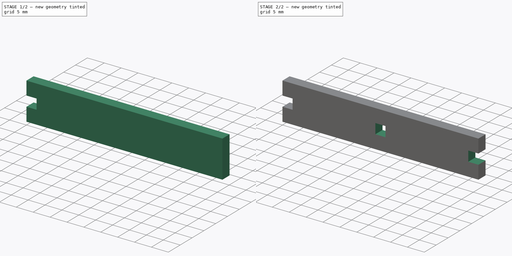
[diagram: build sequence overview — one tinted view per stage of 2, left to right]
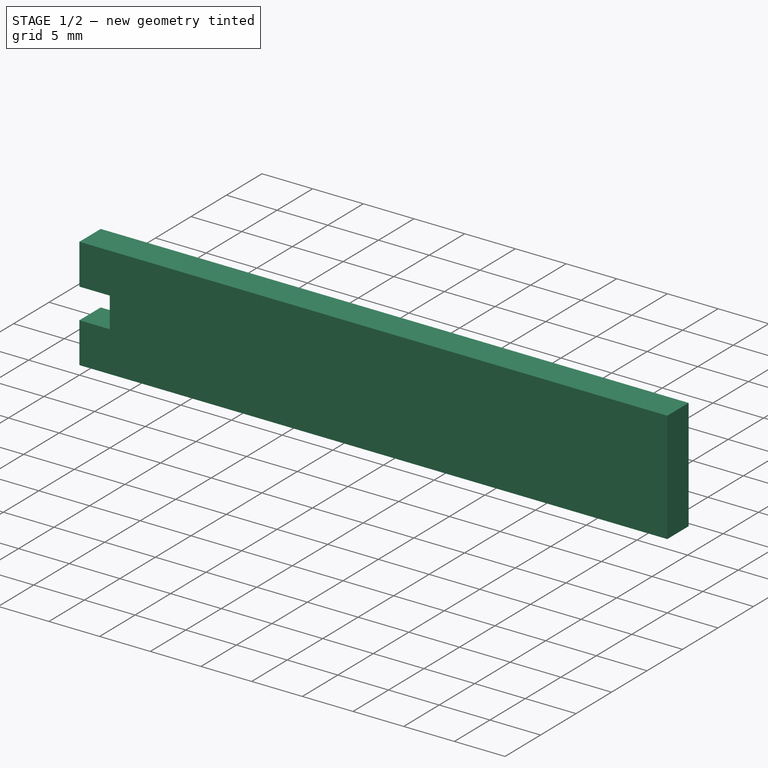
[diagram: stage 1 of 2 — iso view after this stage's code; geometry added in this stage tinted green]
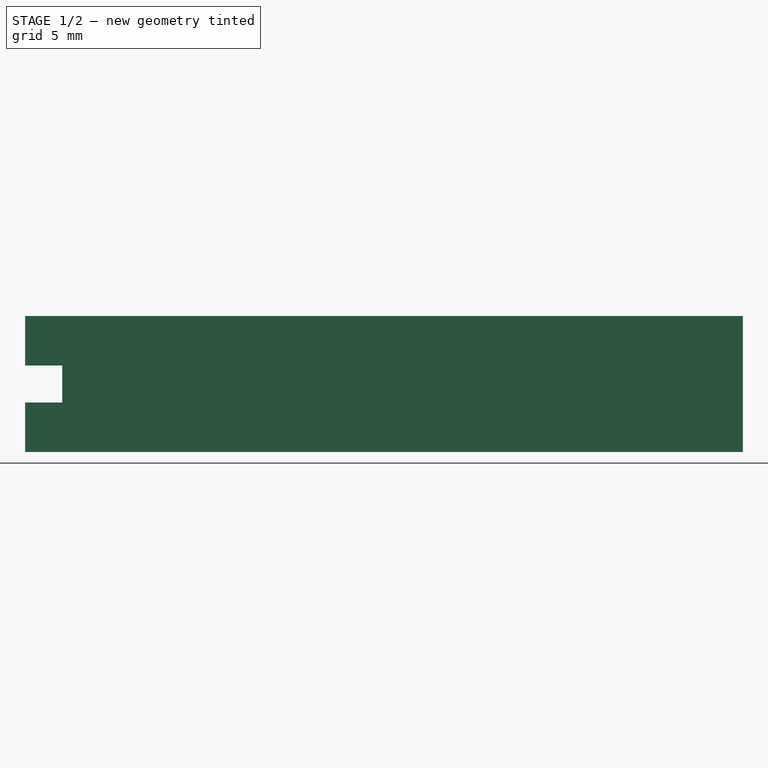
[diagram: stage 1 of 2 — front view after this stage's code; geometry added in this stage tinted green]
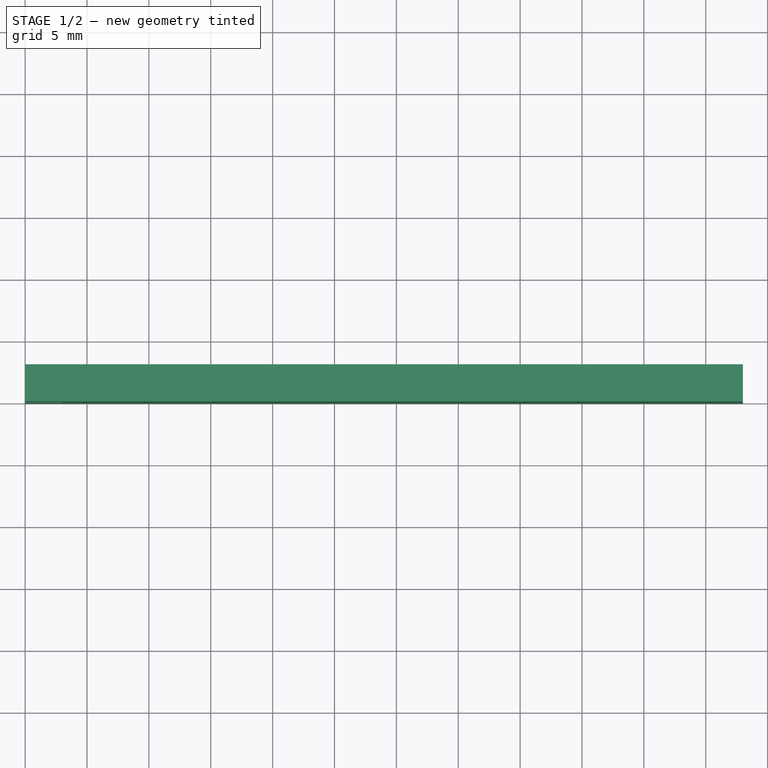
[diagram: stage 1 of 2 — top view after this stage's code; geometry added in this stage tinted green]
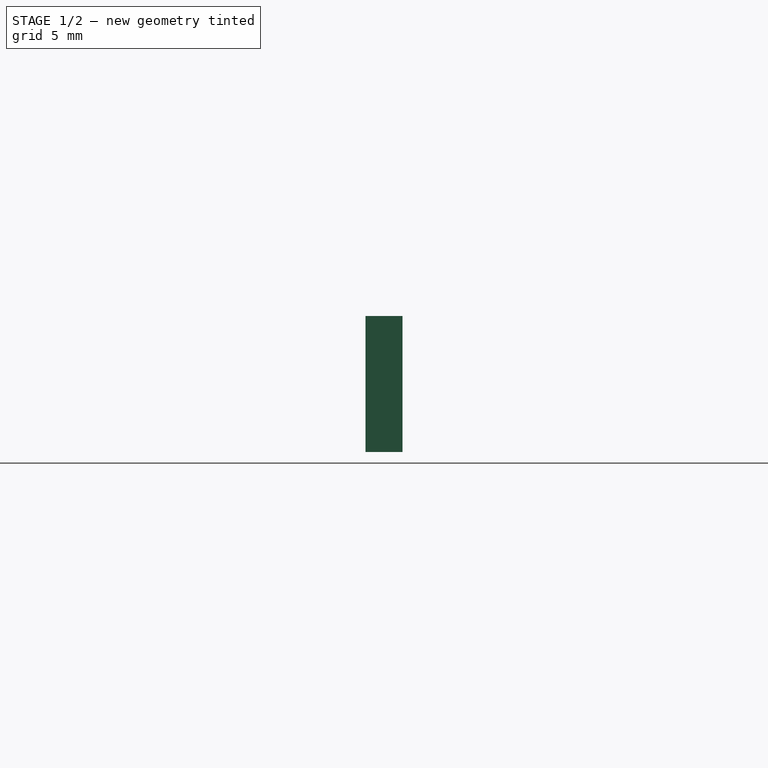
[diagram: stage 1 of 2 — right view after this stage's code; geometry added in this stage tinted green]
FCSTD DOCUMENT  (FreeCAD 0.21R33694 (Git))
Label: kumiko_strip_short_holes
License: All rights reserved
LicenseURL: http://en.wikipedia.org/wiki/All_rights_reserved
objects: Sketcher::SketchObject×2, PartDesign::Pad×1, PartDesign::Pocket×1, App::Link×1, PartDesign::LinearPattern×1, PartDesign::Body×1
note: 8 computed .brp shape members not serialized (recipe doc carries the construction recipe); baked Part::Feature solids carry a one-line shape summary decoded from their .brp
EXTERNAL_REF file=../../master_kumiko_box.FCStd obj=Spreadsheet

FEATURE [Sketcher::SketchObject] Sketch079  label="short_strip_profile"
  FullyConstrained = true
  MapMode = 5
  Placement = pos=(0,0,0) rot=(0.57735,0.57735,0.57735;2.0944rad)
  Support = -> [YZ_Plane070]
  expr: Constraints[10] = 0
  expr: Constraints[8] = <<SpreadSheet>>.kumiko_thickness
  expr: Constraints[9] = <<SpreadSheet>>.kumiko_hight
  sketch-geometry (4):
    g0: LineSegment StartX=0 StartY=11 StartZ=0 EndX=3 EndY=11 EndZ=0
    g1: LineSegment StartX=3 StartY=11 StartZ=0 EndX=3 EndY=0 EndZ=0
    g2: LineSegment StartX=3 StartY=0 StartZ=0 EndX=0 EndY=0 EndZ=0
    g3: LineSegment StartX=0 StartY=0 StartZ=0 EndX=0 EndY=11 EndZ=0
  constraints (12):
    c: Coincident(g0,g1)
    c: Coincident(g1,g2)
    c: Coincident(g2,g3)
    c: Coincident(g3,g0)
    c: Horizontal(g0)
    c: Horizontal(g2)
    c: Vertical(g1)
    c: Vertical(g3)
    c: DistanceX(g0,g0) = 3
    c: DistanceY(g3,g3) = 11
    c: DistanceX(g0,g-1) = 0
    c: DistanceY(g-1,g2) = 0
FEATURE [PartDesign::Pad] Pad037  label="short_strip_extrusion"
  Direction = (1,-2e-16,3e-16)
  Length = 58
  Length2 = 10
  Placement = pos=(0,0,0) rot=(0.57735,0.57735,0.57735;2.0944rad)
  Profile = -> Sketch079
  ReferenceAxis = -> Sketch079 [N_Axis]
  Type = 0
  expr: Length = <<SpreadSheet>>.box_width - 2 * <<SpreadSheet>>.lid_frame_width
FEATURE [Sketcher::SketchObject] Sketch080  label="half_lap_drawing"
  FullyConstrained = true
  MapMode = 5
  Placement = pos=(0,0,0) rot=(-0.57735,-0.57735,0.57735;4.18879rad)
  Support = -> [Pad037]
  expr: Constraints[10] = 0
  expr: Constraints[11] = (<<SpreadSheet>>.kumiko_hight - <<SpreadSheet>>.kumiko_thickness) / 2
  expr: Constraints[8] = <<SpreadSheet>>.kumiko_thickness
  expr: Constraints[9] = <<SpreadSheet>>.kumiko_thickness
  sketch-geometry (4):
    g0: LineSegment StartX=-7 StartY=0 StartZ=0 EndX=-4 EndY=0 EndZ=0
    g1: LineSegment StartX=-4 StartY=0 StartZ=0 EndX=-4 EndY=3 EndZ=0
    g2: LineSegment StartX=-4 StartY=3 StartZ=0 EndX=-7 EndY=3 EndZ=0
    g3: LineSegment StartX=-7 StartY=3 StartZ=0 EndX=-7 EndY=0 EndZ=0
  constraints (12):
    c: Coincident(g0,g1)
    c: Coincident(g1,g2)
    c: Coincident(g2,g3)
    c: Coincident(g3,g0)
    c: Horizontal(g0)
    c: Horizontal(g2)
    c: Vertical(g1)
    c: Vertical(g3)
    c: DistanceY(g1,g1) = 3
    c: DistanceX(g0,g0) = 3
    c: DistanceY(g-1,g0) = 0
    c: DistanceX(g0,g-1) = 4
FEATURE [PartDesign::Pocket] Pocket019  label="half_lap_joint"
  BaseFeature = -> Pad037
  Direction = (4e-16,1,-2e-16)
  Length = 3
  Length2 = 5
  Placement = pos=(0,0,0) rot=(0.57735,0.57735,0.57735;2.0944rad)
  Profile = -> Sketch080
  ReferenceAxis = -> Sketch080 [N_Axis]
  Type = 0
  expr: Length = <<SpreadSheet>>.kumiko_thickness
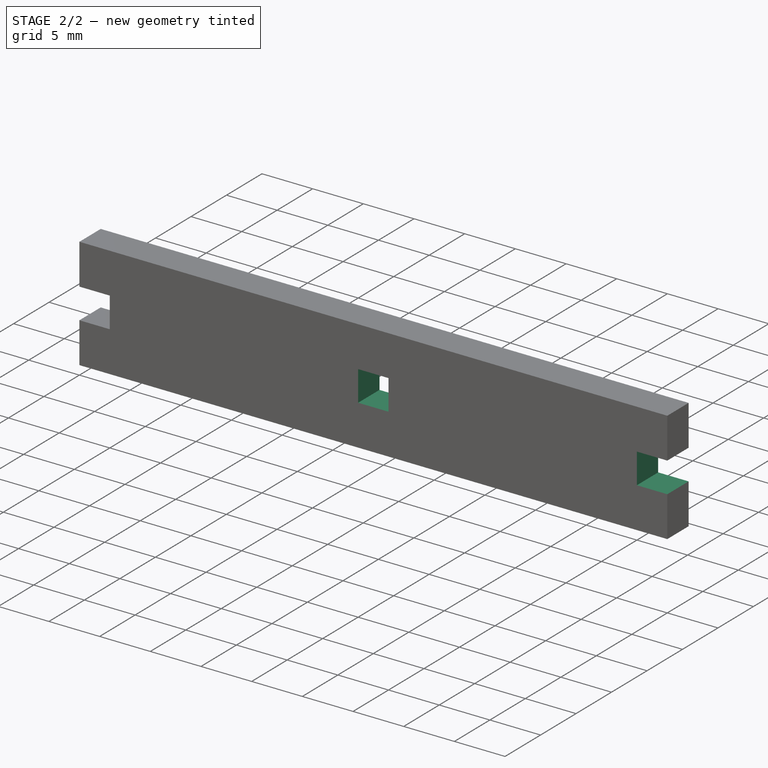
[diagram: stage 2 of 2 — iso view after this stage's code; geometry added in this stage tinted green]
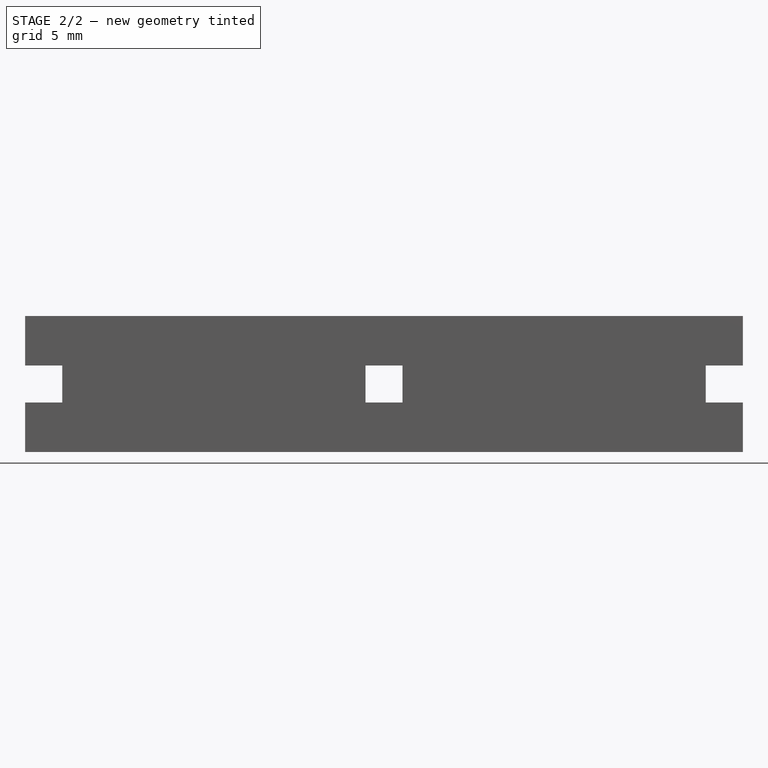
[diagram: stage 2 of 2 — front view after this stage's code; geometry added in this stage tinted green]
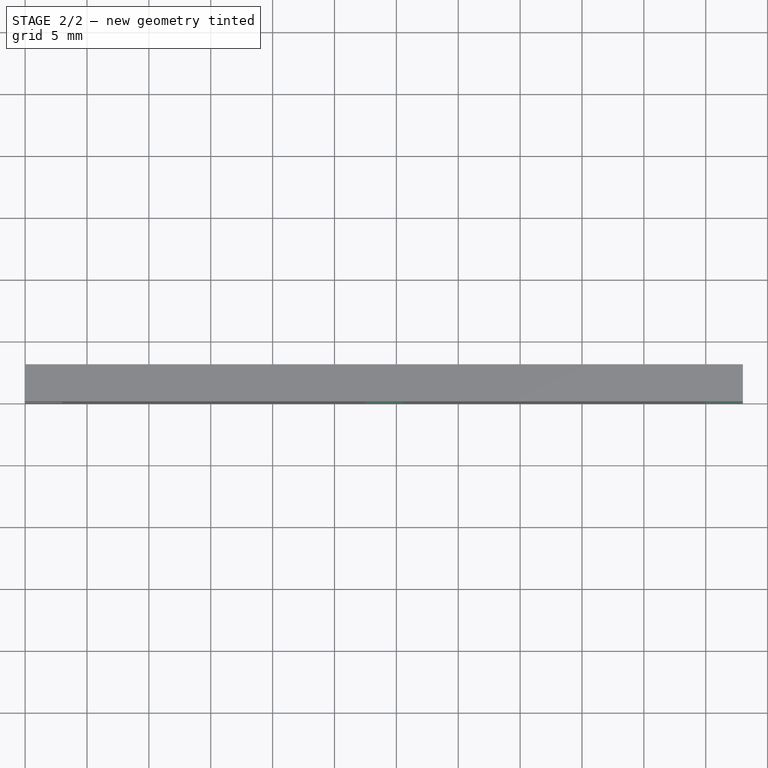
[diagram: stage 2 of 2 — top view after this stage's code; geometry added in this stage tinted green]
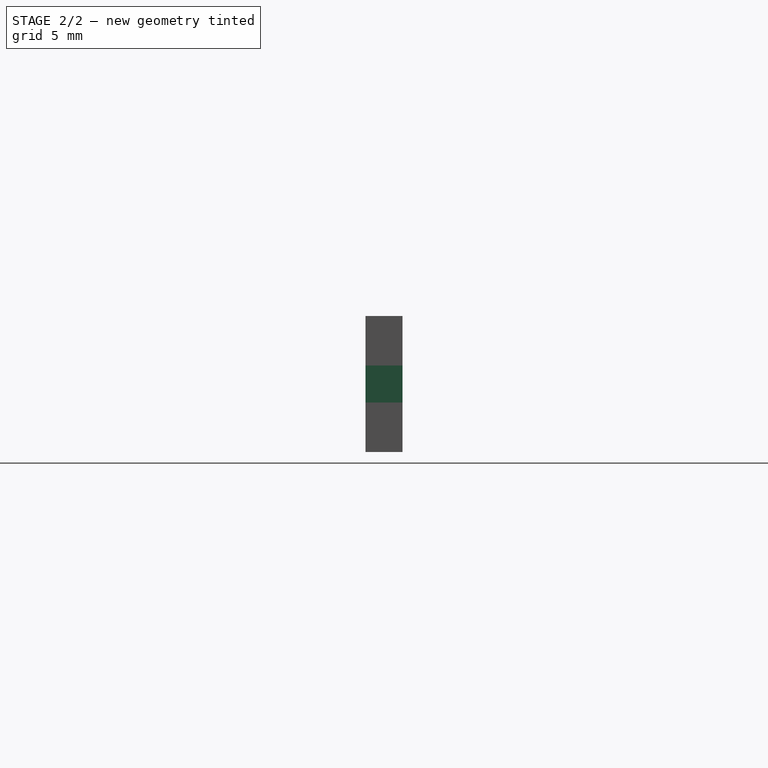
[diagram: stage 2 of 2 — right view after this stage's code; geometry added in this stage tinted green]
FEATURE [App::Link] Link  label="SpreadSheet"
  LinkedObject = -> <external ../../master_kumiko_box.FCStd>#Spreadsheet
FEATURE [PartDesign::LinearPattern] LinearPattern
  BaseFeature = -> Pocket019
  Direction = -> X_Axis070
  Length = 55
  Occurrences = 3
  Originals = -> [Pocket019]
  Placement = pos=(0,0,0) rot=(0.57735,0.57735,0.57735;2.0944rad)
  expr: Length = <<SpreadSheet>>.kumiko_grid_size * 2
FEATURE [PartDesign::Body] Body052  label="short_strip_body"
  Group = -> [Sketch079,Pad037,Sketch080,Pocket019,LinearPattern]
  Origin = -> Origin070
  Tip = -> LinearPattern
  expr: .Placement.Base.x = 0
  expr: .Placement.Base.y = 0
  expr: .Placement.Base.z = 0
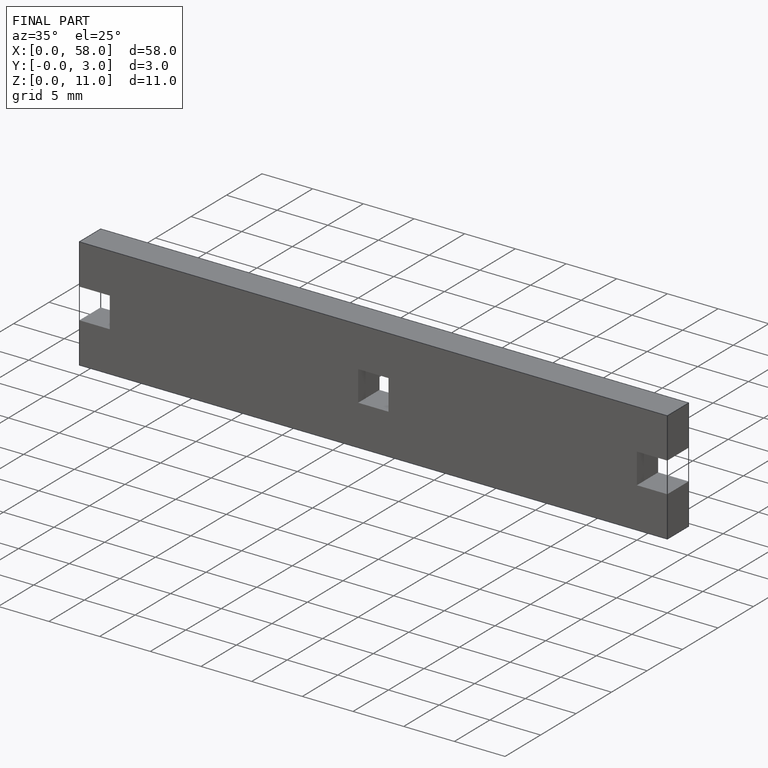
[diagram: finished part — iso view with bounding-box wireframe]
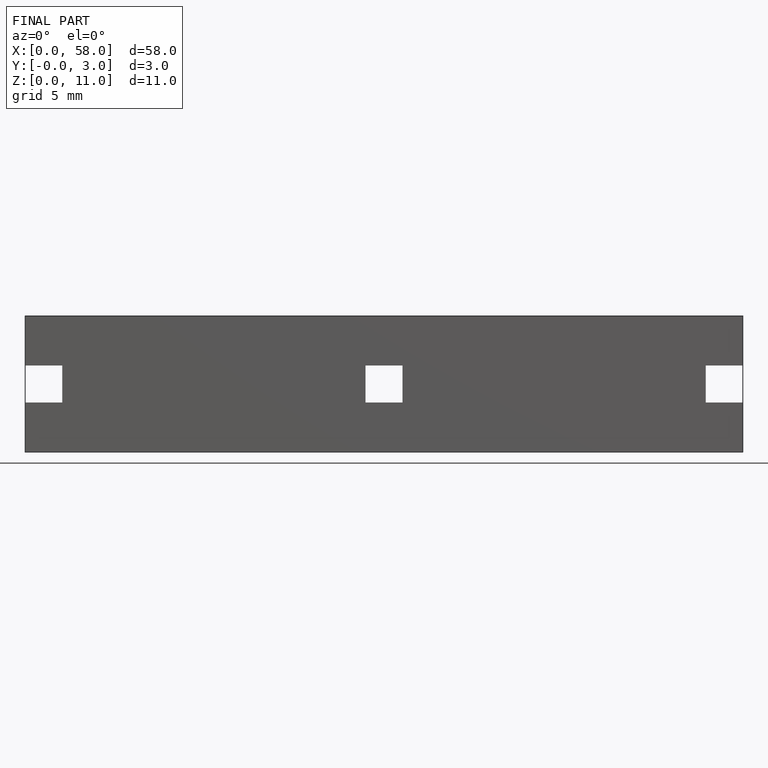
[diagram: finished part — front view with bounding-box wireframe]
